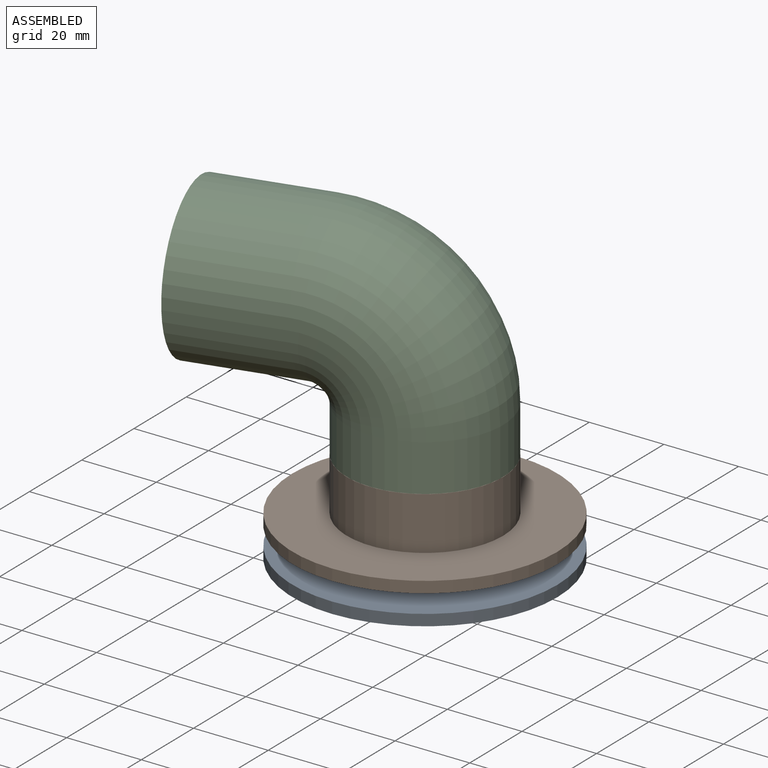
[diagram: assembled view]
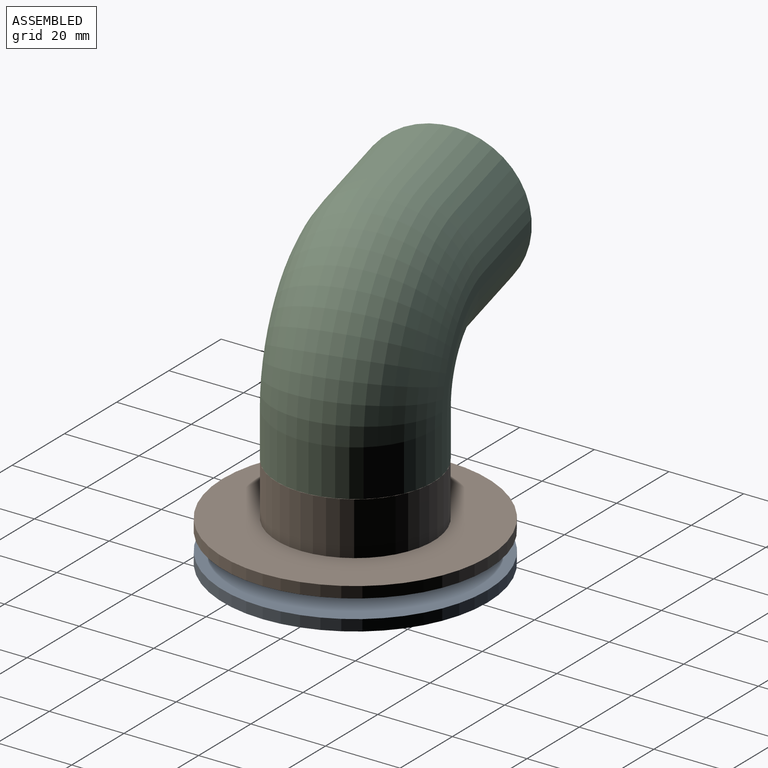
[diagram: assembled view, second angle]
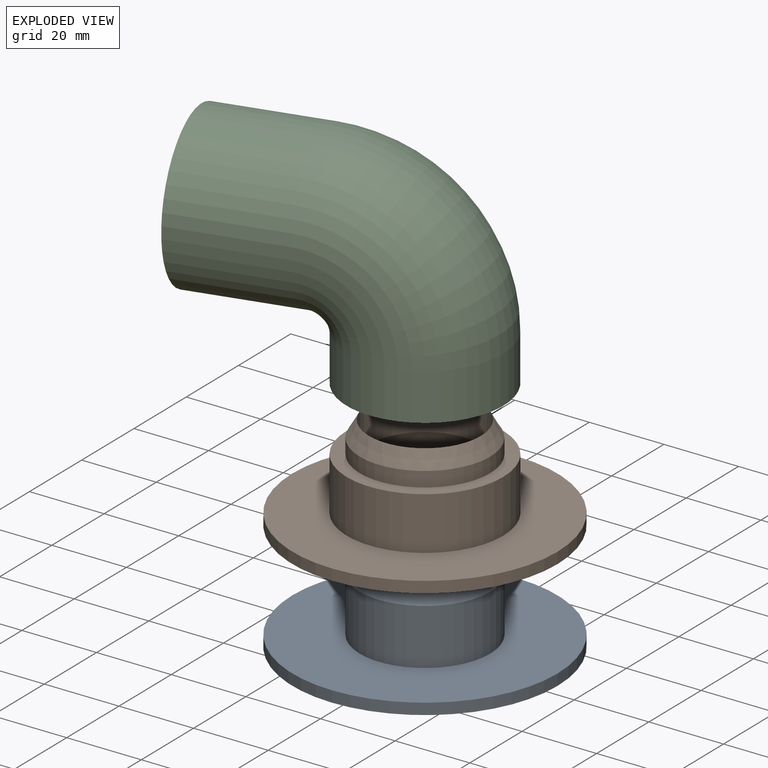
[diagram: exploded view]
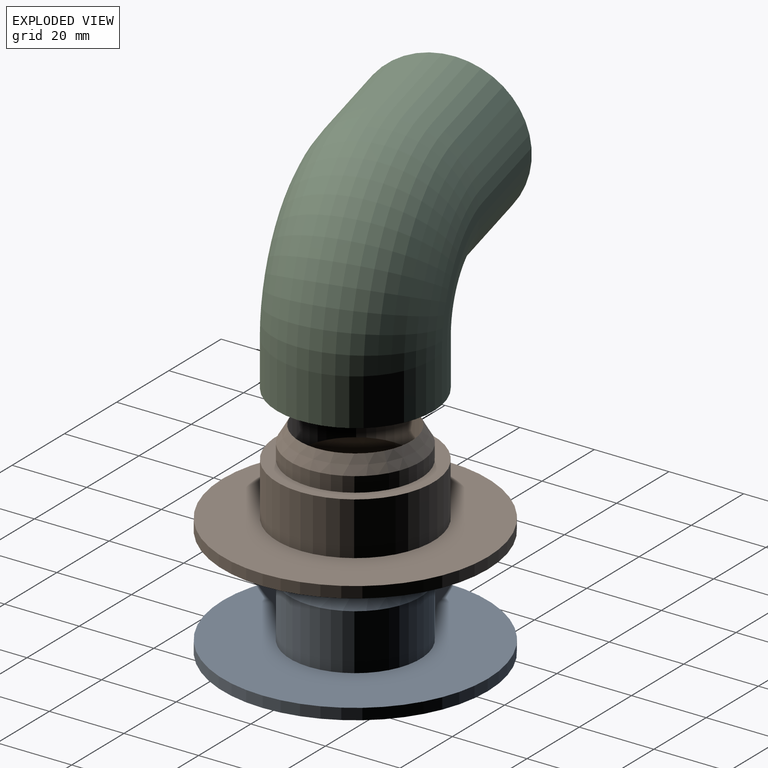
[diagram: exploded view, second angle]
ASSEMBLY  parts=3 mates=4
PART A: 6 faces, bbox 71x71x22.3 mm
  f0: cylinder r=14.96mm len=29.93mm, axis (0,0,-1), area 2099.3mm2, adj f1,f5
  f1: cone r=14.96mm half-angle=30deg, axis (0,0,-1), area 509.3mm2, adj f0,f2
  f2: cylinder r=17.46mm len=34.93mm, axis (0,0,-1), area 1645.8mm2, adj f1,f3
  f3: plane 71x71mm, normal (0,0,1), area 3001.2mm2, adj f2,f4
  f4: cylinder r=35.5mm len=71mm, axis (0,0,-1), area 669.2mm2, adj f3,f5
  f5: plane 71x71mm, normal (0,0,-1), area 3255.9mm2, adj f0,f4
PART B: 10 faces, bbox 71x71x25.5 mm
  f0: plane 41.93x41.93mm, normal (0,0,1), area 422.5mm2, adj f1,f9
  f1: cylinder r=20.96mm len=41.93mm, axis (0,0,-1), area 1871.9mm2, adj f0,f2
  f2: plane 71x71mm, normal (0,0,1), area 2578.7mm2, adj f1,f3
  f3: cylinder r=35.5mm len=71mm, axis (0,0,-1), area 669.2mm2, adj f2,f4
  f4: plane 71x71mm, normal (0,0,-1), area 2922.9mm2, adj f3,f5
  f5: cylinder r=18.16mm len=36.33mm, axis (0,0,-1), area 1141.2mm2, adj f4,f6
  f6: cone r=18.16mm half-angle=30deg, axis (0,0,-1), area 666mm2, adj f5,f7
  f7: cylinder r=14.96mm len=29.93mm, axis (0,0,-1), area 940.1mm2, adj f6,f8
  f8: cone r=14.96mm half-angle=30deg, axis (0,0,-1), area 509.3mm2, adj f7,f9
  f9: cylinder r=17.46mm len=34.93mm, axis (0,0,-1), area 438.9mm2, adj f0,f8
PART C: 10 faces, bbox 78.6x41.9x61.2 mm
  f0: cylinder r=20.96mm len=41.93mm, axis (0,0,-1), area 1652mm2, adj f1,f6
  f1: plane 41.93x41.93mm, normal (0,0,-1), area 344.2mm2, adj f0,f2
  f2: cylinder r=18.16mm len=36.33mm, axis (0,0,-1), area 456.5mm2, adj f1,f3
  f3: cone r=18.16mm half-angle=30deg, axis (0,0,-1), area 666mm2, adj f2,f4
  f4: cylinder r=14.96mm len=29.93mm, axis (0,0,-1), area 282mm2, adj f3,f5
  f5: torus R=23.96mm, axis (0,-1,0), area 3538.6mm2, adj f4,f7
  f6: torus R=23.96mm, axis (0,-1,0), area 4957.6mm2, adj f0,f8
  f7: cone r=14.96mm half-angle=1.5deg, axis (-1,0,0), area 2895.6mm2, adj f5,f9
  f8: cylinder r=20.96mm len=41.93mm, axis (1,0,0), area 3951.3mm2, adj f6,f9
  f9: plane 41.93x41.93mm, normal (-1,0,0), area 601.2mm2, adj f7,f8
PLACE A rot(axis=(0,0,-1),0deg) t=(0,0,0)mm
PLACE B rot(axis=(0,0,-1),0deg) t=(0,0,8)mm
PLACE C rot(axis=(0,0,1),14.2deg) t=(0,0,25.26)mm
MATE parallel B.f1 <-> A.f0  axis (0,0,1) through (0,0,11)mm
MATE cylindrical A.f0 <-> B.f1  axis (0,0,-1) through (0,0,10.5)mm
MATE parallel B.f1 <-> C.f0  axis (0,0,1) through (0,0,25.21)mm
MATE cylindrical B.f1 <-> C.f0  axis (0,0,-1) through (0,0,33.54)mm
